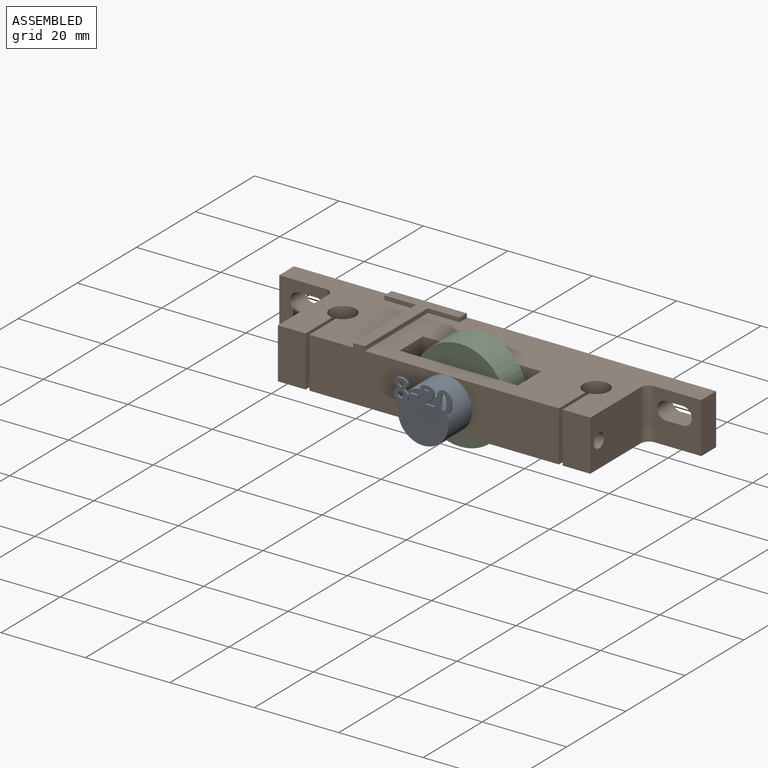
[diagram: assembled view]
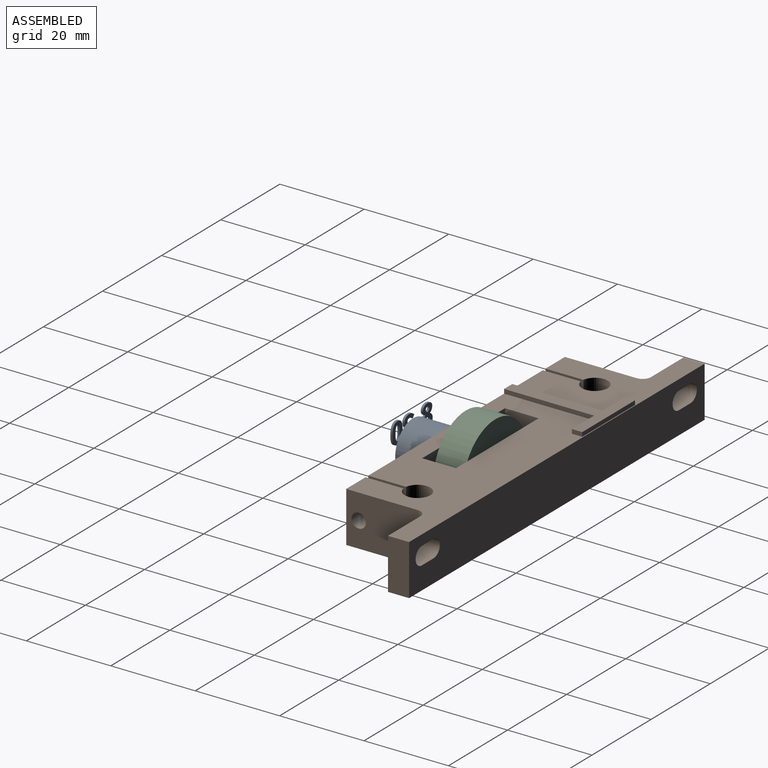
[diagram: assembled view, second angle]
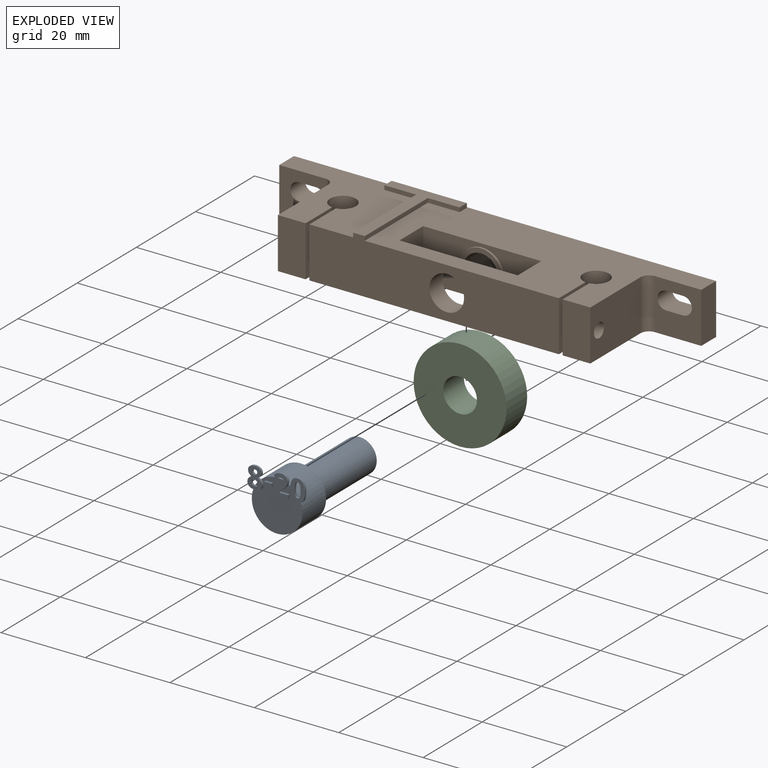
[diagram: exploded view]
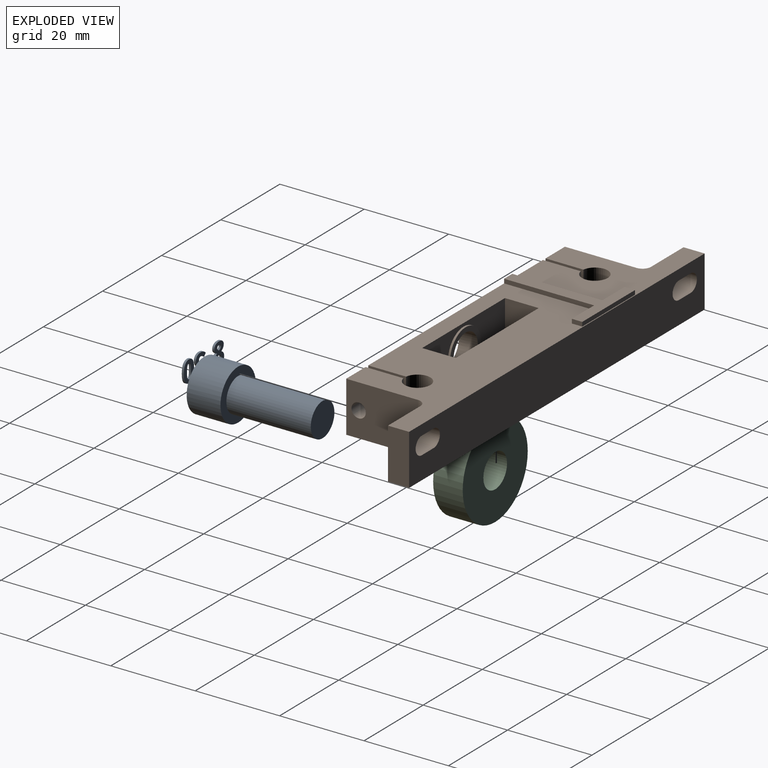
[diagram: exploded view, second angle]
ASSEMBLY  parts=3 mates=2
PART A: 89 faces, bbox 13.6x13.4x28.5 mm
  f0: plane 0.75x0.57mm, normal (0,0,1), area 0.1mm2, adj f5,f78,f79
  f1: plane 12x12mm, normal (0,0,1), area 100.3mm2, adj f5,f22,f23,f24,f25,f26,f40,f41
  f2: plane 1.04x0.97mm, normal (0,0,1), area 0.5mm2, adj f5,f29,f30,f31,f32,f33
  f3: cylinder r=4mm len=20mm, axis (0,0,-1), area 502.7mm2, adj f4,f6
  f4: plane 8x8mm, normal (0,0,-1), area 50.3mm2, adj f3
  f5: cylinder r=6mm len=12mm, axis (0,0,-1), area 301.6mm2, adj f0,f1,f2,f6,f39,f70,f88
  f6: plane 12x12mm, normal (0,0,-1), area 62.8mm2, adj f3,f5
  f7: extruded ~0.5x0.43mm, area 0.2mm2, adj f8,f37,f38,f39
  f8: extruded ~0.5x0.43mm, area 0.2mm2, adj f7,f9,f38,f39
  f9: extruded ~0.5x0.37mm, area 0.2mm2, adj f8,f10,f38,f39
  f10: extruded ~0.5x0.38mm, area 0.2mm2, adj f9,f11,f38,f39
  f11: extruded ~0.5x0.46mm, area 0.3mm2, adj f10,f12,f38,f39
  f12: extruded ~0.5x0.47mm, area 0.3mm2, adj f11,f13,f38,f39
  f13: extruded ~0.5x0.36mm, area 0.2mm2, adj f12,f37,f38,f39
  f14: extruded ~1.15x0.5mm, area 0.6mm2, adj f15,f35,f38,f39
  f15: extruded ~1.15x0.5mm, area 0.6mm2, adj f14,f16,f38,f39
  f16: extruded ~0.86x0.5mm, area 0.5mm2, adj f15,f17,f38,f39
  f17: extruded ~0.67x0.5mm, area 0.4mm2, adj f16,f18,f38,f39
  f18: extruded ~0.61x0.57mm, area 0.4mm2, adj f17,f19,f38,f39
  f19: extruded ~0.72x0.58mm, area 0.5mm2, adj f18,f20,f38,f39
  f20: extruded ~0.75x0.5mm, area 0.4mm2, adj f19,f21,f38,f39
  f21: extruded ~0.98x0.5mm, area 0.6mm2, adj f20,f22,f38,f39
  f22: extruded ~1.28x0.5mm, area 0.7mm2, adj f1,f21,f23,f38,f39
  f23: extruded ~1.26x0.5mm, area 0.7mm2, adj f1,f22,f24,f38
  f24: extruded ~0.98x0.5mm, area 0.6mm2, adj f1,f23,f25,f38
  f25: extruded ~0.71x0.5mm, area 0.4mm2, adj f1,f24,f26,f38
  f26: extruded ~0.8x0.62mm, area 0.5mm2, adj f1,f25,f27,f38,f39
  f27: extruded ~0.68x0.53mm, area 0.4mm2, adj f26,f28,f38,f39
  f28: extruded ~0.68x0.5mm, area 0.4mm2, adj f27,f35,f38,f39
  f29: extruded ~0.62x0.5mm, area 0.4mm2, adj f2,f30,f36,f38,f39
  f30: extruded ~0.5x0.43mm, area 0.2mm2, adj f2,f29,f31,f38
  f31: extruded ~0.5x0.44mm, area 0.2mm2, adj f2,f30,f32,f38
  f32: extruded ~0.58x0.5mm, area 0.3mm2, adj f2,f31,f33,f38
  f33: extruded ~0.56x0.5mm, area 0.3mm2, adj f2,f32,f34,f38,f39
  f34: extruded ~0.5x0.45mm, area 0.3mm2, adj f33,f36,f38,f39
  f35: extruded ~0.87x0.5mm, area 0.5mm2, adj f14,f28,f38,f39
  f36: extruded ~0.84x0.72mm, area 0.6mm2, adj f29,f34,f38,f39
  f37: extruded ~0.5x0.37mm, area 0.2mm2, adj f7,f13,f38,f39
  f38: plane 5.09x3.48mm, normal (0,0,1), area 11.2mm2, adj f7,f8,f9,f10,f11,f12,f13,f14
  f39: plane 5.05x3.32mm, normal (0,0,-1), area 8.6mm2, adj f5,f7,f8,f9,f10,f11,f12,f13
  f40: plane 0.85x0.5mm, normal (-1,0,0), area 0.4mm2, adj f1,f41,f43,f44
  f41: plane 1.82x0.5mm, normal (0,-1,0), area 0.9mm2, adj f1,f40,f42,f44
  f42: plane 0.85x0.5mm, normal (1,0,0), area 0.4mm2, adj f1,f41,f43,f44
  f43: plane 1.82x0.5mm, normal (0,1,0), area 0.9mm2, adj f1,f40,f42,f44
  f44: plane 1.82x0.85mm, normal (0,0,1), area 1.5mm2, adj f40,f41,f42,f43
  f45: extruded ~0.5x0.39mm, area 0.2mm2, adj f1,f46,f68,f69,f70
  f46: extruded ~0.5x0.41mm, area 0.2mm2, adj f1,f45,f47,f69
  f47: extruded ~0.78x0.72mm, area 0.5mm2, adj f1,f46,f48,f69
  f48: plane 1.26x1.24mm, normal (-0.71,0.7,0), area 0.9mm2, adj f1,f47,f49,f69
  f49: plane 0.73x0.5mm, normal (-1,0,0), area 0.4mm2, adj f1,f48,f50,f69
  f50: plane 3.46x0.5mm, normal (0,-1,0), area 1.7mm2, adj f1,f49,f51,f69
  f51: plane 0.88x0.5mm, normal (1,0,0), area 0.4mm2, adj f1,f50,f52,f69
  f52: plane 2.16x0.5mm, normal (0,1,0), area 1.1mm2, adj f1,f51,f53,f69
  f53: plane 0.5x0.05mm, normal (1,0,0), area 0mm2, adj f1,f52,f54,f69
  f54: plane 0.64x0.6mm, normal (0.69,-0.73,0), area 0.4mm2, adj f1,f53,f55,f69
  f55: extruded ~0.9x0.89mm, area 0.6mm2, adj f1,f54,f56,f69
  f56: extruded ~0.62x0.5mm, area 0.4mm2, adj f1,f55,f57,f69,f70
  f57: extruded ~0.64x0.5mm, area 0.3mm2, adj f56,f58,f69,f70
  f58: extruded ~0.7x0.5mm, area 0.4mm2, adj f57,f59,f69,f70
  f59: extruded ~0.55x0.5mm, area 0.4mm2, adj f58,f60,f69,f70
  f60: extruded ~0.82x0.5mm, area 0.4mm2, adj f59,f61,f69,f70
  f61: extruded ~0.64x0.5mm, area 0.3mm2, adj f60,f62,f69,f70
  f62: extruded ~0.53x0.5mm, area 0.3mm2, adj f61,f63,f69,f70
  f63: extruded ~0.61x0.5mm, area 0.4mm2, adj f62,f64,f69,f70
  f64: plane 0.67x0.57mm, normal (-0.76,-0.65,0), area 0.4mm2, adj f63,f65,f69,f70
  f65: extruded ~0.57x0.5mm, area 0.3mm2, adj f64,f66,f69,f70
  f66: extruded ~0.56x0.5mm, area 0.3mm2, adj f65,f67,f69,f70
  f67: extruded ~0.5x0.44mm, area 0.2mm2, adj f66,f68,f69,f70
  f68: extruded ~0.5x0.44mm, area 0.2mm2, adj f45,f67,f69,f70
  f69: plane 5.03x3.48mm, normal (0,0,1), area 9.1mm2, adj f45,f46,f47,f48,f49,f50,f51,f52
  f70: plane 3.34x2.04mm, normal (0,0,-1), area 3.5mm2, adj f5,f45,f56,f57,f58,f59,f60,f61
  f71: extruded ~1.92x0.5mm, area 1mm2, adj f72,f86,f87,f88
  f72: extruded ~1.91x0.5mm, area 1mm2, adj f71,f73,f87,f88
  f73: extruded ~1.3x0.65mm, area 0.8mm2, adj f72,f74,f87,f88
  f74: extruded ~1.3x0.62mm, area 0.8mm2, adj f73,f75,f87,f88
  f75: extruded ~1.93x0.5mm, area 1mm2, adj f1,f74,f76,f87,f88
  f76: extruded ~1.9x0.5mm, area 1mm2, adj f1,f75,f77,f87
  f77: extruded ~1.29x0.64mm, area 0.8mm2, adj f1,f76,f86,f87
  f78: extruded ~0.53x0.5mm, area 0.4mm2, adj f0,f79,f85,f87,f88
  f79: extruded ~1.31x0.5mm, area 0.7mm2, adj f0,f78,f80,f87,f88
  f80: extruded ~1.31x0.5mm, area 0.7mm2, adj f79,f81,f87,f88
  f81: extruded ~0.53x0.5mm, area 0.4mm2, adj f80,f82,f87,f88
  f82: extruded ~0.53x0.5mm, area 0.4mm2, adj f81,f83,f87,f88
  f83: extruded ~1.31x0.5mm, area 0.7mm2, adj f82,f84,f87,f88
  f84: extruded ~1.3x0.5mm, area 0.7mm2, adj f83,f85,f87,f88
  f85: extruded ~0.53x0.5mm, area 0.4mm2, adj f78,f84,f87,f88
  f86: extruded ~1.31x0.62mm, area 0.8mm2, adj f1,f71,f77,f87,f88
  f87: plane 5.1x3.46mm, normal (0,0,1), area 10.7mm2, adj f71,f72,f73,f74,f75,f76,f77,f78
  f88: plane 5.1x3.46mm, normal (0,0,-1), area 8.4mm2, adj f5,f71,f72,f73,f74,f75,f78,f79
PART B: 53 faces, bbox 100x24x13 mm
  f0: plane 100x24mm, normal (0,0,1), area 1506.4mm2, adj f2,f3,f4,f5,f6,f7,f8,f9
  f1: plane 100x24mm, normal (0,0,-1), area 1609.3mm2, adj f2,f3,f4,f5,f6,f7,f8,f9
  f2: plane 100x12mm, normal (0,1,0), area 1138.7mm2, adj f0,f1,f6,f11,f18,f19,f20,f21
  f3: plane 12x11mm, normal (0,-1,0), area 101.3mm2, adj f0,f1,f11,f22,f23,f24,f25,f48
  f4: plane 12x6.55mm, normal (0,-1,0), area 78.7mm2, adj f0,f1,f10,f16
  f5: plane 59.11x13mm, normal (0,-1,0), area 659.3mm2, adj f0,f1,f14,f17,f26,f37,f38,f44
  f6: plane 12x5mm, normal (-1,0,0), area 60mm2, adj f0,f1,f2,f7
  f7: plane 12x11mm, normal (0,-1,0), area 101.3mm2, adj f0,f1,f6,f18,f19,f20,f21,f52
  f8: plane 17x12mm, normal (-1,0,0), area 194.9mm2, adj f0,f1,f9,f51,f52
  f9: plane 12x6.55mm, normal (0,-1,0), area 78.7mm2, adj f0,f1,f8,f13
  f10: plane 17x12mm, normal (1,0,0), area 194.9mm2, adj f0,f1,f4,f47,f48
  f11: plane 12x5mm, normal (1,0,0), area 60mm2, adj f0,f1,f2,f3
  f12: cylinder r=3.05mm len=12mm, axis (0,0,1), area 219.2mm2, adj f0,f1,f13,f14
  f13: plane 12x8.98mm, normal (1,0,0), area 98.7mm2, adj f0,f1,f9,f12,f51
  f14: plane 12x8.98mm, normal (-1,0,0), area 101.6mm2, adj f0,f1,f5,f12,f50
  f15: cylinder r=3.05mm len=12mm, axis (0,0,1), area 219.2mm2, adj f0,f1,f16,f17
  f16: plane 12x8.98mm, normal (-1,0,0), area 98.7mm2, adj f0,f1,f4,f15,f47
  f17: plane 12x8.98mm, normal (1,0,0), area 101.6mm2, adj f0,f1,f5,f15,f46
  f18: cylinder r=2.1mm len=5mm, axis (0,1,0), area 33mm2, adj f2,f7,f19,f21
  f19: plane 5x4mm, normal (0,0,1), area 20mm2, adj f2,f7,f18,f20
  f20: cylinder r=2.1mm len=5mm, axis (0,1,0), area 33mm2, adj f2,f7,f19,f21
  f21: plane 5x4mm, normal (0,0,-1), area 20mm2, adj f2,f7,f18,f20
  f22: plane 5x4mm, normal (0,0,-1), area 20mm2, adj f2,f3,f23,f25
  f23: cylinder r=2.1mm len=5mm, axis (0,1,0), area 33mm2, adj f2,f3,f22,f24
  f24: plane 5x4mm, normal (0,0,1), area 20mm2, adj f2,f3,f23,f25
  f25: cylinder r=2.1mm len=5mm, axis (0,1,0), area 33mm2, adj f2,f3,f22,f24
  f26: cylinder r=4.1mm len=8.2mm, axis (0,-1,0), area 115.9mm2, adj f5,f36
  f27: plane 12x8mm, normal (1,0,0), area 96mm2, adj f0,f1,f29,f30
  f28: plane 12x8mm, normal (-1,0,0), area 96mm2, adj f0,f1,f29,f30
  f29: plane 28x12mm, normal (0,-1,0), area 251.2mm2, adj f0,f1,f27,f28,f31
  f30: plane 28x12mm, normal (0,1,0), area 249.3mm2, adj f0,f1,f27,f28,f35
  f31: cylinder r=5.2mm len=10.39mm, axis (0,1,0), area 16.3mm2, adj f29,f32
  f32: plane 10.39x10.39mm, normal (0,-1,0), area 32mm2, adj f31,f34
  f33: plane 8.2x8.2mm, normal (0,-1,0), area 52.8mm2, adj f34
  f34: cylinder r=4.1mm len=8.5mm, axis (0,-1,0), area 219mm2, adj f32,f33
  f35: cylinder r=5.25mm len=10.51mm, axis (0,-1,0), area 16.5mm2, adj f30,f36
  f36: plane 10.51x10.51mm, normal (0,1,0), area 33.9mm2, adj f26,f35
  f37: plane 21.34x1mm, normal (-1,0,0), area 21.3mm2, adj f0,f5,f43,f44
  f38: plane 21.34x1mm, normal (1,0,0), area 21.3mm2, adj f0,f5,f39,f44
  f39: plane 7.54x1mm, normal (0,-1,0), area 7.5mm2, adj f0,f38,f40,f44
  f40: plane 2.46x1mm, normal (1,0,0), area 2.5mm2, adj f0,f39,f41,f44
  f41: plane 17.84x1mm, normal (0,1,0), area 17.8mm2, adj f0,f40,f42,f44
  f42: plane 2.46x1mm, normal (-1,0,0), area 2.5mm2, adj f0,f41,f43,f44
  f43: plane 7.54x1mm, normal (0,-1,0), area 7.5mm2, adj f0,f37,f42,f44
  f44: plane 23.8x17.84mm, normal (0,0,1), area 102.9mm2, adj f5,f37,f38,f39,f40,f41,f42,f43
  f45: plane 2.8x2.8mm, normal (1,0,0), area 6.2mm2, adj f46
  f46: cylinder r=1.4mm len=10.55mm, axis (1,0,0), area 92.8mm2, adj f17,f45
  f47: cylinder r=1.7mm len=6.55mm, axis (1,0,0), area 70mm2, adj f10,f16
  f48: cylinder r=2mm len=12mm, axis (0,0,1), area 37.7mm2, adj f0,f1,f3,f10
  f49: plane 2.8x2.8mm, normal (-1,0,0), area 6.2mm2, adj f50
  f50: cylinder r=1.4mm len=10.55mm, axis (-1,0,0), area 92.8mm2, adj f14,f49
  f51: cylinder r=1.7mm len=6.55mm, axis (-1,0,0), area 70mm2, adj f8,f13
  f52: cylinder r=2mm len=12mm, axis (0,0,1), area 37.7mm2, adj f0,f1,f7,f8
PART C: 4 faces, bbox 22x22x7 mm
  f0: cylinder r=4mm len=8mm, axis (0,0,-1), area 175.9mm2, adj f2,f3
  f1: cylinder r=11mm len=22mm, axis (0,0,-1), area 483.8mm2, adj f2,f3
  f2: plane 22x22mm, normal (0,0,1), area 329.9mm2, adj f0,f1
  f3: plane 22x22mm, normal (0,0,-1), area 329.9mm2, adj f0,f1
PLACE A rot(axis=(1,0,0),90deg) t=(5.95,13.74,6.05)mm
PLACE B t=(-0.7,5.43,0.05)mm
PLACE C rot(axis=(-1,0,0),90deg) t=(5.95,-1.76,6.05)mm
MATE fastened C.f0 <-> B.f26  axis (0,1,0) through (5.95,5.24,6.05)mm
MATE fastened A.f3 <-> B.f26  axis (0,1,0) through (5.95,-6.26,6.05)mm
